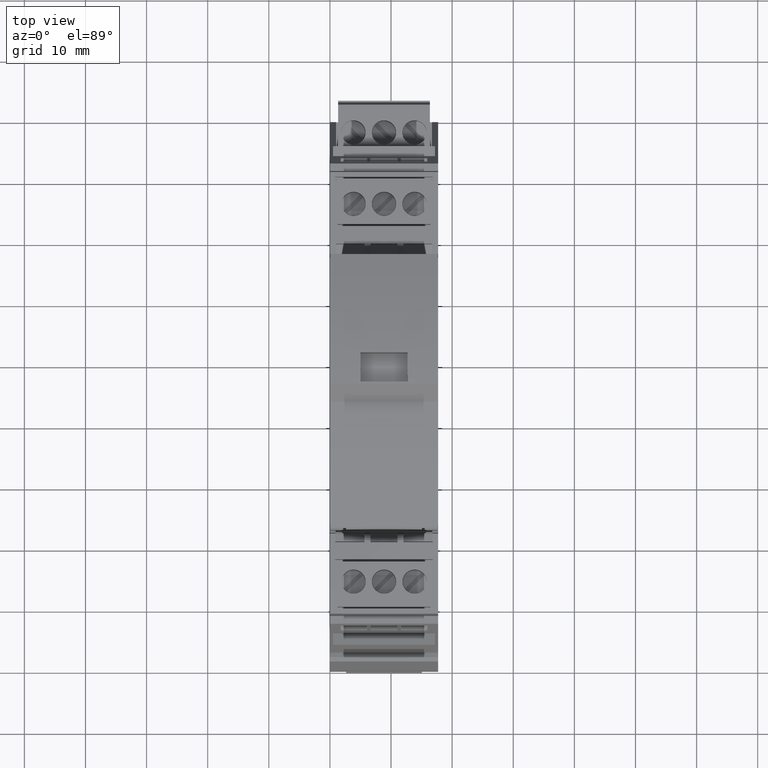
[diagram: clean part render]
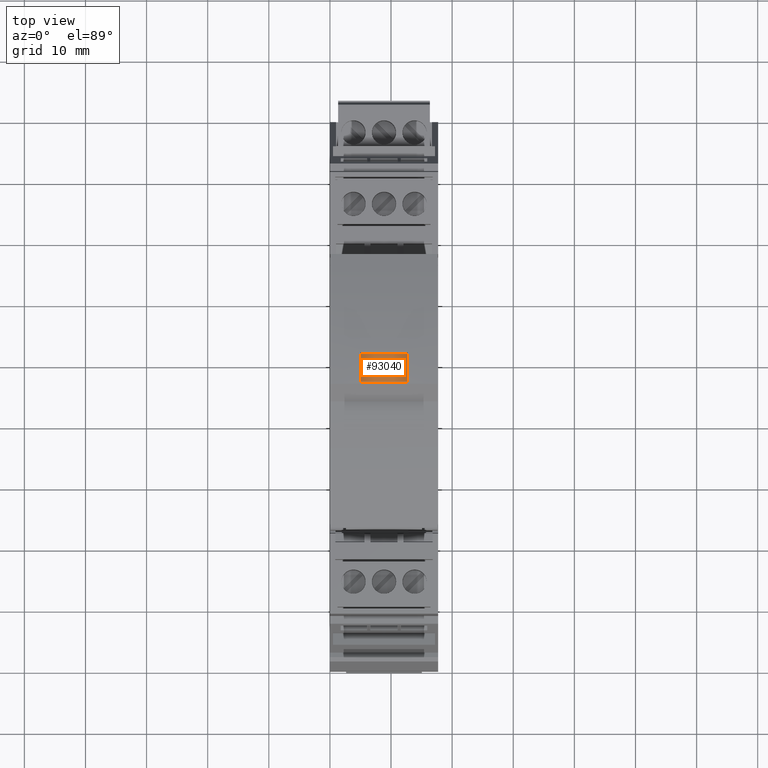
[diagram: same view with one face highlighted and labeled with its STEP entity id]
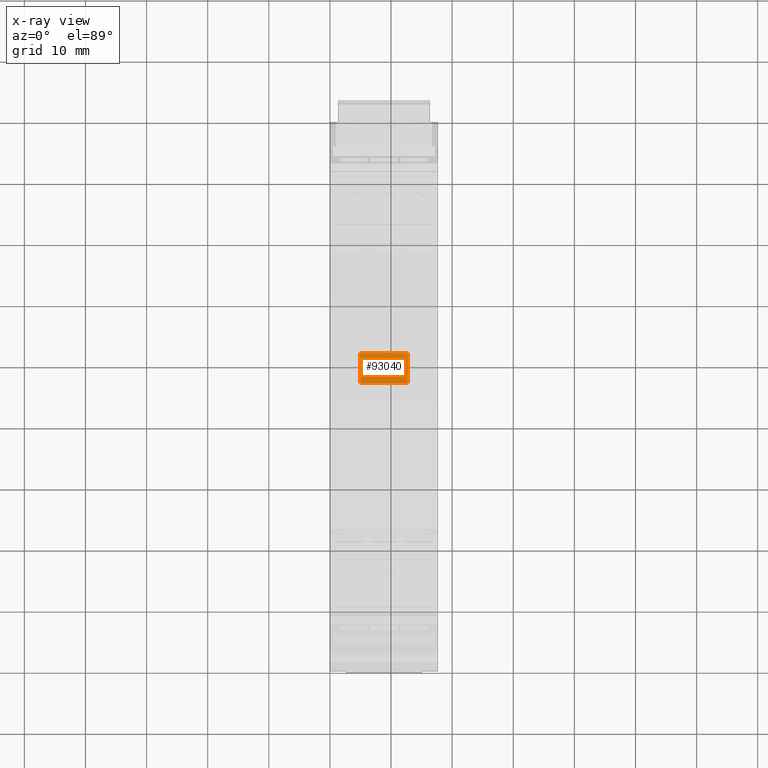
[diagram: x-ray of the same camera — body ghosted, the highlighted face saturated]
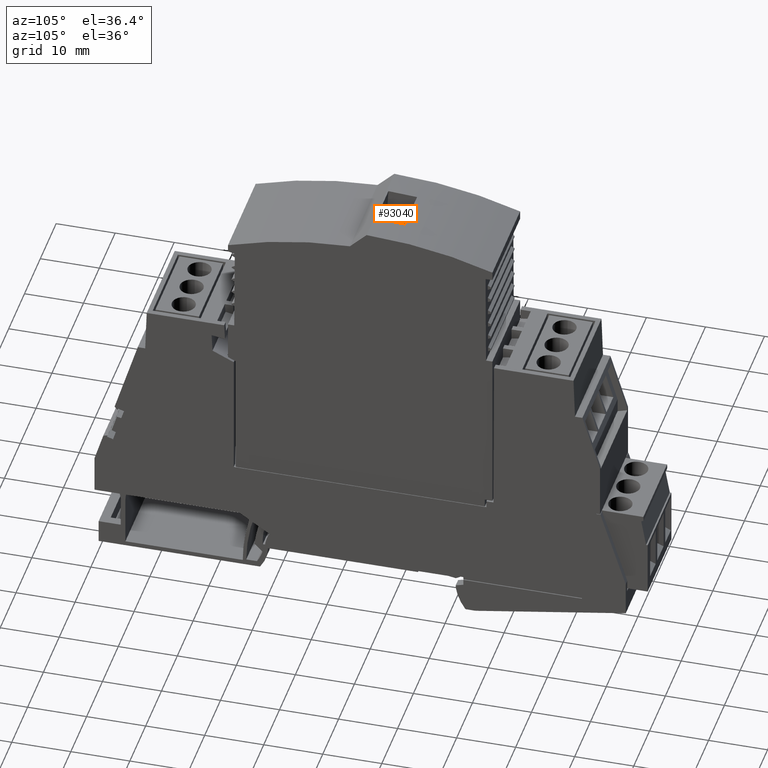
[diagram: same view with one face highlighted and labeled with its STEP entity id]
A machine part, top view. The second image highlights one B-rep face of the part: STEP entity #93040.
The next image is the same camera in x-ray: the body ghosted, the highlighted face saturated — about 0% of this face is hidden behind the body in this view.
A second angle (auxiliary view) of the same face is appended — the face is thin or edge-on in the first view.
In plain terms, the highlighted planar face has unit normal (0, 0.0031, 1).
Its self-contained STEP definition (entity closure, byte-faithful):
#92250=CARTESIAN_POINT('',(65.3370394273989,85.0149928475389,
-99.3367430129066));
#92260=DIRECTION('',(-0.00306574975924774,0.999995300578165,
-1.34691196288652E-13));
#92270=DIRECTION('',(-0.999995300578165,-0.00306574975924774,
5.15548590301641E-11));
#92280=AXIS2_PLACEMENT_3D('',#92250,#92260,#92270);
#92290=PLANE('',#92280);
#92300=CARTESIAN_POINT('',(68.1305529227746,85.0235571011197,
-41.3000000000924));
#92310=DIRECTION('',(8.31146492694258E-15,-1.34666348271031E-13,-1.));
#92320=VECTOR('',#92310,1.);
#92330=LINE('',#92300,#92320);
#92340=CARTESIAN_POINT('',(68.1305529227745,85.0235571011201,
-38.4613739525002));
#92350=VERTEX_POINT('',#92340);
#92360=CARTESIAN_POINT('',(68.1305529227746,85.023557101119,
-46.2322230639645));
#92370=VERTEX_POINT('',#92360);
#92380=EDGE_CURVE('',#92350,#92370,#92330,.T.);
#92390=ORIENTED_EDGE('',*,*,#92380,.T.);
#92400=CARTESIAN_POINT('',(85.6746281046155,85.0773430981481,
-38.3921220367263));
#92410=CARTESIAN_POINT('',(84.0246353401336,85.0722846094557,
-38.3986350708287));
#92420=CARTESIAN_POINT('',(82.3746425756517,85.0672261207632,
-38.405148104931));
#92430=CARTESIAN_POINT('',(79.6214826391395,85.058785581685,
-38.4160156826209));
#92440=CARTESIAN_POINT('',(78.5183154671092,85.0554035312993,
-38.4203702262084));
#92450=CARTESIAN_POINT('',(75.1150949069806,85.0449700596551,
-38.4338037951567));
#92460=CARTESIAN_POINT('',(72.8150415188822,85.0379186383967,
-38.4428828205175));
#92470=CARTESIAN_POINT('',(69.3152281715388,85.0271890360467,
-38.4566976712088));
#92480=CARTESIAN_POINT('',(68.1154682122938,85.0235108549552,
-38.4614334965393));
#92490=CARTESIAN_POINT('',(66.4404725115027,85.0183757131566,
-38.4680452249998));
#92500=CARTESIAN_POINT('',(66.0245055942441,85.0171004566872,
-38.4701066523503));
#92510=CARTESIAN_POINT('',(65.6857349087153,85.0160618656588,
-38.4719580207131));
#92520=CARTESIAN_POINT('',(65.2514974113199,85.0147305958995,
-38.4743311114171));
#92530=CARTESIAN_POINT('',(64.8407193213549,85.0134712471509,
-38.476924890249));
#92540=CARTESIAN_POINT('',(63.2558688610935,85.0086124694004,
-38.4879905807418));
#92550=CARTESIAN_POINT('',(62.0561288668424,85.0049343495169,
-38.4963673656695));
#92560=CARTESIAN_POINT('',(58.5563737592756,84.9942049257163,
-38.5208032400892));
#92570=CARTESIAN_POINT('',(56.25635864596,84.9871536217993,
-38.5368623295812));
#92580=CARTESIAN_POINT('',(52.8531947182244,84.9767203237767,
-38.5606237882581));
#92590=CARTESIAN_POINT('',(51.7500459038045,84.9733383296711,
-38.568326157443));
#92600=CARTESIAN_POINT('',(48.9969317821411,84.9648979310504,
-38.5875488598528));
#92610=CARTESIAN_POINT('',(47.3469664748978,84.9598395265354,
-38.5990691930777));
#92620=CARTESIAN_POINT('',(45.6970011676544,84.9547811220204,
-38.6105895263026));
#92630=B_SPLINE_CURVE_WITH_KNOTS('',3,(#92400,#92410,#92420,#92430,
#92440,#92450,#92460,#92470,#92480,#92490,#92500,#92510,#92520,#92530,
#92540,#92550,#92560,#92570,#92580,#92590,#92600,#92610,#92620),
.UNSPECIFIED.,.F.,.F.,(4,2,2,2,2,3,2,2,2,2,4),(-16.1560644725345,
-11.8929102462064,-9.0426118127682,-3.09986919393591,0.,1.22788614816168
,2.45593496310229,6.28169252674685,13.6160318489565,17.133777311153,
22.3952233612843),.UNSPECIFIED.);
#92640=CARTESIAN_POINT('',(63.2611244091636,85.0086285816714,
-38.4879538856278));
#92650=VERTEX_POINT('',#92640);
#92660=EDGE_CURVE('',#92350,#92650,#92630,.T.);
#92670=ORIENTED_EDGE('',*,*,#92660,.F.);
#92680=CARTESIAN_POINT('',(63.2611244091637,85.008628581671,
-41.3000000000924));
#92690=DIRECTION('',(-8.31146492694258E-15,1.34666348271031E-13,1.));
#92700=VECTOR('',#92690,1.);
#92710=LINE('',#92680,#92700);
#92720=CARTESIAN_POINT('',(63.2611244091637,85.0086285816704,
-46.2056431308376));
#92730=VERTEX_POINT('',#92720);
#92740=EDGE_CURVE('',#92730,#92650,#92710,.T.);
#92750=ORIENTED_EDGE('',*,*,#92740,.T.);
#92760=CARTESIAN_POINT('',(85.6746281048637,85.0773430981478,
-46.301474979736));
#92770=CARTESIAN_POINT('',(84.0246353403528,85.0722846094553,
-46.2949619456339));
#92780=CARTESIAN_POINT('',(82.3746425758419,85.0672261207628,
-46.2884489115317));
#92790=CARTESIAN_POINT('',(79.6214826392499,85.0587855816843,
-46.2775813338421));
#92800=CARTESIAN_POINT('',(78.5183154671689,85.0554035312984,
-46.2732267902545));
#92810=CARTESIAN_POINT('',(75.1150949069866,85.0449700596541,
-46.2597932213067));
#92820=CARTESIAN_POINT('',(72.8150415188853,85.0379186383957,
-46.2507141959462));
#92830=CARTESIAN_POINT('',(69.3152281715389,85.0271890360457,
-46.2368993452556));
#92840=CARTESIAN_POINT('',(68.1154682122939,85.0235108549542,
-46.2321635199253));
#92850=CARTESIAN_POINT('',(66.440472511654,85.018375713156,
-46.2255517914657));
#92860=CARTESIAN_POINT('',(66.0245055944186,85.0171004566866,
-46.2234903641157));
#92870=CARTESIAN_POINT('',(65.6857349087154,85.0160618656577,
-46.221638995752));
#92880=CARTESIAN_POINT('',(65.2514974979537,85.014730596164,
-46.2192659055216));
#92890=CARTESIAN_POINT('',(64.8407194131296,85.0134712474312,
-46.2166721268573));
#92900=CARTESIAN_POINT('',(63.2558688610936,85.0086124693994,
-46.2056064357236));
#92910=CARTESIAN_POINT('',(62.0561288668424,85.0049343495158,
-46.1972296507958));
#92920=CARTESIAN_POINT('',(58.5563737592727,84.9942049257153,
-46.1727937763758));
#92930=CARTESIAN_POINT('',(56.2563586459541,84.9871536217983,
-46.1567346868836));
#92940=CARTESIAN_POINT('',(52.8531947181649,84.9767203237755,
-46.132973228206));
#92950=CARTESIAN_POINT('',(51.7500459036942,84.9733383296697,
-46.1252708590206));
#92960=CARTESIAN_POINT('',(48.9969317819511,84.9648979310488,
-46.10604815661));
#92970=CARTESIAN_POINT('',(47.3469664746788,84.9598395265337,
-46.0945278233848));
#92980=CARTESIAN_POINT('',(45.6970011674064,84.9547811220186,
-46.0830074901596));
#92990=B_SPLINE_CURVE_WITH_KNOTS('',3,(#92760,#92770,#92780,#92790,
#92800,#92810,#92820,#92830,#92840,#92850,#92860,#92870,#92880,#92890,
#92900,#92910,#92920,#92930,#92940,#92950,#92960,#92970,#92980),
.UNSPECIFIED.,.F.,.F.,(4,2,2,2,2,3,2,2,2,2,4),(-16.1560644778892,
-11.8929102501296,-9.04261181565329,-3.09986919492231,0.,
1.22788614816169,2.4559349631023,6.28169161504096,13.6160291894336,
17.1337738134875,22.3952186098703),.UNSPECIFIED.);
#93000=EDGE_CURVE('',#92370,#92730,#92990,.T.);
#93010=ORIENTED_EDGE('',*,*,#93000,.T.);
#93020=EDGE_LOOP('',(#93010,#92750,#92670,#92390));
#93030=FACE_OUTER_BOUND('',#93020,.T.);
#93040=ADVANCED_FACE('',(#93030),#92290,.T.);